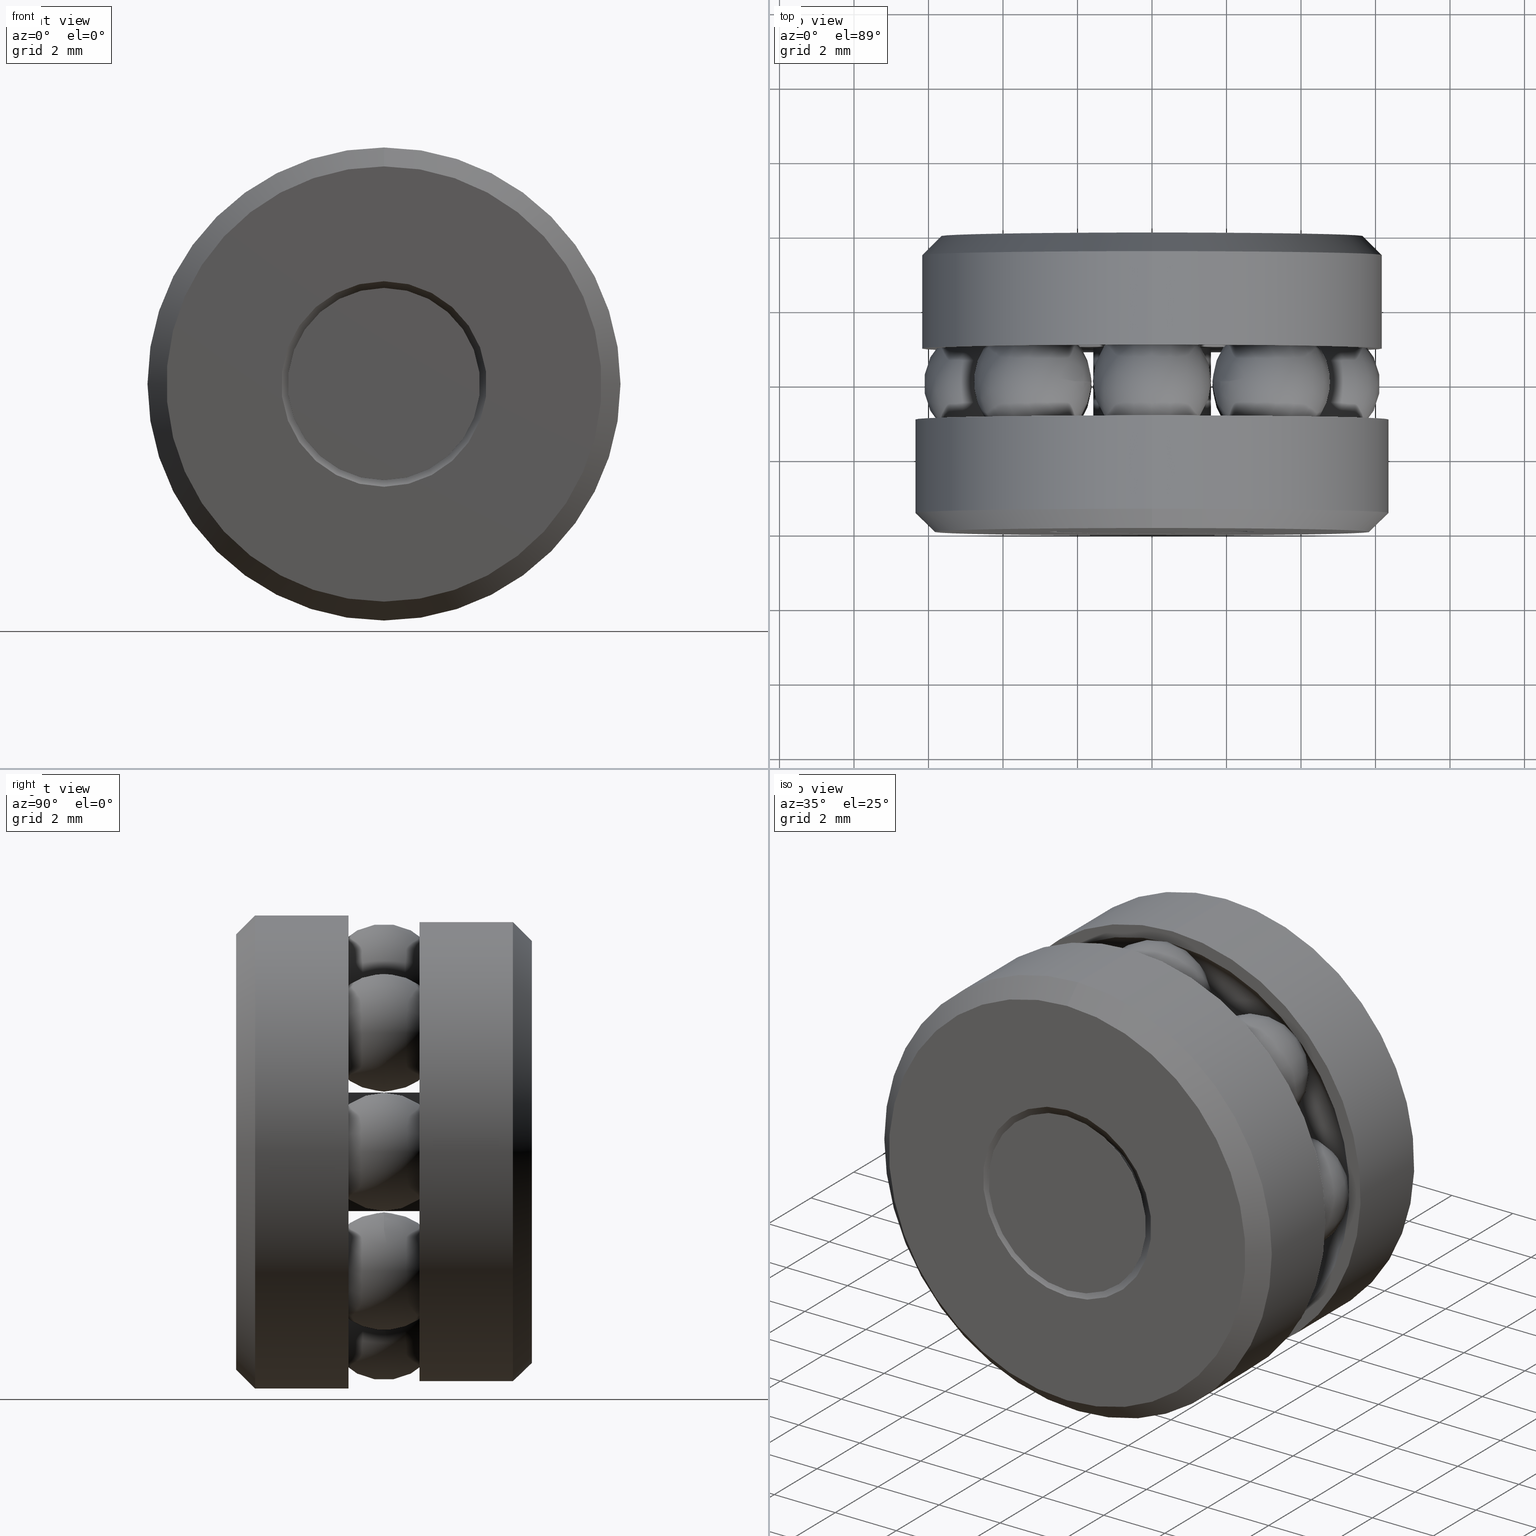
[diagram: canonical four-view strip — front | top / right | iso, engineering-drawing reading convention]
A machine part, canonical four-view strip (front | top / right | iso — engineering-drawing reading convention). The complete STEP part file that produces these views, byte-faithful:
ISO-10303-21;
HEADER;
FILE_DESCRIPTION (( 'STEP AP203' ),
    '1' );
FILE_NAME ('T-114RG_T-114RG-0008.step',
    '2016-02-04T15:34:07',
    ( '' ),
    ( '' ),
    'SwSTEP 2.0',
    'SolidWorks 2016',
    '' );
FILE_SCHEMA (( 'CONFIG_CONTROL_DESIGN' ));
ENDSEC;

DATA;
#1 = CALENDAR_DATE ( 2016, 4, 2 ) ;
#2 = DIRECTION ( 'NONE',  ( 0.0000000000000000000, 0.0000000000000000000, 1.000000000000000000 ) ) ;
#3 = CARTESIAN_POINT ( 'NONE',  ( 0.0000000000000000000, 0.3125000000000000000, 0.0000000000000000000 ) ) ;
#4 = EDGE_LOOP ( 'NONE', ( #144 ) ) ;
#5 = FACE_OUTER_BOUND ( 'NONE', #548, .T. ) ;
#6 = ORIENTED_EDGE ( 'NONE', *, *, #516, .F. ) ;
#7 = CARTESIAN_POINT ( 'NONE',  ( -0.2500000000000000000, 0.1187499999999999700, 0.0000000000000000000 ) ) ;
#8 = ORIENTED_EDGE ( 'NONE', *, *, #428, .T. ) ;
#9 = EDGE_LOOP ( 'NONE', ( #8 ) ) ;
#10 = DIRECTION ( 'NONE',  ( 0.0000000000000000000, 0.0000000000000000000, 1.000000000000000000 ) ) ;
#11 = ORIENTED_EDGE ( 'NONE', *, *, #343, .F. ) ;
#12 = PRODUCT_DEFINITION_FORMATION_WITH_SPECIFIED_SOURCE ( 'ANY', '', #325, .NOT_KNOWN. ) ;
#13 = DIRECTION ( 'NONE',  ( 0.0000000000000000000, 0.0000000000000000000, 1.000000000000000000 ) ) ;
#14 = ORIENTED_EDGE ( 'NONE', *, *, #354, .F. ) ;
#15 = CLOSED_SHELL ( 'NONE', ( #359 ) ) ;
#16 = CARTESIAN_POINT ( 'NONE',  ( -0.1015624999999995700, 0.0000000000000000000, 0.0000000000000000000 ) ) ;
#17 = EDGE_LOOP ( 'NONE', ( #252 ) ) ;
#18 = AXIS2_PLACEMENT_3D ( 'NONE', #7, #456, #140 ) ;
#19 = CARTESIAN_POINT ( 'NONE',  ( -1.869688256950497400E-015, 0.1562500000000000000, -0.1784999999999999600 ) ) ;
#20 = CALENDAR_DATE ( 2016, 4, 2 ) ;
#21 = AXIS2_PLACEMENT_3D ( 'NONE', #62, #125, #288 ) ;
#22 = DIRECTION ( 'NONE',  ( -0.0000000000000000000, 1.000000000000000000, -0.0000000000000000000 ) ) ;
#23 = ORIENTED_EDGE ( 'NONE', *, *, #362, .T. ) ;
#24 = ORIENTED_EDGE ( 'NONE', *, *, #307, .F. ) ;
#25 = ADVANCED_FACE ( 'NONE', ( ), #217, .T. ) ;
#26 = AXIS2_PLACEMENT_3D ( 'NONE', #554, #510, #269 ) ;
#27 = DIRECTION ( 'NONE',  ( 0.0000000000000000000, 0.0000000000000000000, 1.000000000000000000 ) ) ;
#28 = CARTESIAN_POINT ( 'NONE',  ( 0.0000000000000000000, 0.0000000000000000000, 0.0000000000000000000 ) ) ;
#29 = DIRECTION ( 'NONE',  ( 0.0000000000000000000, 0.0000000000000000000, 1.000000000000000000 ) ) ;
#30 = ORIENTED_EDGE ( 'NONE', *, *, #428, .F. ) ;
#31 = EDGE_LOOP ( 'NONE', ( #414 ) ) ;
#32 = CC_DESIGN_DATE_AND_TIME_ASSIGNMENT ( #137, #397, ( #174 ) ) ;
#33 = VERTEX_POINT ( 'NONE', #483 ) ;
#34 = MANIFOLD_SOLID_BREP ( 'BALLS[6]', #522 ) ;
#35 = SHAPE_DEFINITION_REPRESENTATION ( #340, #449 ) ;
#36 = DIRECTION ( 'NONE',  ( -0.0000000000000000000, 1.000000000000000000, 0.0000000000000000000 ) ) ;
#37 = CC_DESIGN_SECURITY_CLASSIFICATION ( #81, ( #12 ) ) ;
#38 = DATE_AND_TIME ( #176, #279 ) ;
#39 = AXIS2_PLACEMENT_3D ( 'NONE', #539, #331, #507 ) ;
#40 = EDGE_LOOP ( 'NONE', ( #151 ) ) ;
#41 = EDGE_LOOP ( 'NONE', ( #11 ) ) ;
#42 = CIRCLE ( 'NONE', #454, 0.1284999999999999500 ) ;
#43 = DIRECTION ( 'NONE',  ( -0.0000000000000000000, 1.000000000000000000, -0.0000000000000000000 ) ) ;
#44 = APPROVAL_DATE_TIME ( #150, #91 ) ;
#45 = EDGE_LOOP ( 'NONE', ( #30 ) ) ;
#46 = CARTESIAN_POINT ( 'NONE',  ( 0.0000000000000000000, 0.1937500000000000100, 0.0000000000000000000 ) ) ;
#47 = CC_DESIGN_PERSON_AND_ORGANIZATION_ASSIGNMENT ( #387, #399, ( #174 ) ) ;
#48 = ORIENTED_EDGE ( 'NONE', *, *, #86, .F. ) ;
#49 = ORIENTED_EDGE ( 'NONE', *, *, #445, .T. ) ;
#50 = ADVANCED_FACE ( 'NONE', ( #219, #190 ), #216, .F. ) ;
#51 = EDGE_LOOP ( 'NONE', ( #277 ) ) ;
#52 = SPHERICAL_SURFACE ( 'NONE', #378, 0.06250000000000001400 ) ;
#53 = PERSON_AND_ORGANIZATION ( #315, #348 ) ;
#54 = ADVANCED_FACE ( 'NONE', ( #166, #189 ), #117, .F. ) ;
#55 = APPLICATION_CONTEXT ( 'configuration controlled 3d designs of mechanical parts and assemblies' ) ;
#56 = ORIENTED_EDGE ( 'NONE', *, *, #338, .F. ) ;
#57 = MANIFOLD_SOLID_BREP ( 'BALLS[2]', #152 ) ;
#58 = ORIENTED_EDGE ( 'NONE', *, *, #321, .F. ) ;
#59 = AXIS2_PLACEMENT_3D ( 'NONE', #236, #533, #167 ) ;
#60 = FACE_OUTER_BOUND ( 'NONE', #63, .T. ) ;
#61 = DIRECTION ( 'NONE',  ( 0.0000000000000000000, 0.0000000000000000000, 1.000000000000000000 ) ) ;
#62 = CARTESIAN_POINT ( 'NONE',  ( 0.0000000000000000000, -5.082755344596973000E-018, 0.0000000000000000000 ) ) ;
#63 = EDGE_LOOP ( 'NONE', ( #48 ) ) ;
#64 = ORIENTED_EDGE ( 'NONE', *, *, #86, .T. ) ;
#65 = ORIENTED_EDGE ( 'NONE', *, *, #516, .T. ) ;
#66 = DIRECTION ( 'NONE',  ( -0.0000000000000000000, 1.000000000000000000, -0.0000000000000000000 ) ) ;
#67 = DIRECTION ( 'NONE',  ( 0.7071067811865389100, 0.0000000000000000000, -0.7071067811865561200 ) ) ;
#68 = DIRECTION ( 'NONE',  ( 0.0000000000000000000, 0.0000000000000000000, 1.000000000000000000 ) ) ;
#69 = ORIENTED_EDGE ( 'NONE', *, *, #154, .F. ) ;
#70 = ORIENTED_EDGE ( 'NONE', *, *, #484, .T. ) ;
#71 = DIRECTION ( 'NONE',  ( -0.0000000000000000000, 1.000000000000000000, -0.0000000000000000000 ) ) ;
#72 = ADVANCED_FACE ( 'NONE', ( #181, #118 ), #111, .T. ) ;
#73 = VERTEX_POINT ( 'NONE', #472 ) ;
#74 = CARTESIAN_POINT ( 'NONE',  ( 0.0000000000000000000, 0.1187499999999999900, 0.0000000000000000000 ) ) ;
#75 = ORIENTED_EDGE ( 'NONE', *, *, #406, .T. ) ;
#76 = AXIS2_PLACEMENT_3D ( 'NONE', #3, #93, #165 ) ;
#77 = APPROVAL_PERSON_ORGANIZATION ( #132, #91, #401 ) ;
#78 = CC_DESIGN_APPROVAL ( #91, ( #174 ) ) ;
#79 = LOCAL_TIME ( 10, 34, 7.000000000000000000, #194 ) ;
#80 = CARTESIAN_POINT ( 'NONE',  ( 0.0000000000000000000, 0.02000000000000017400, 0.0000000000000000000 ) ) ;
#81 = SECURITY_CLASSIFICATION ( '', '', #386 ) ;
#82 = ORIENTED_EDGE ( 'NONE', *, *, #321, .T. ) ;
#83 = DIRECTION ( 'NONE',  ( -0.0000000000000000000, 1.000000000000000000, -0.0000000000000000000 ) ) ;
#84 = FACE_OUTER_BOUND ( 'NONE', #51, .T. ) ;
#85 = CIRCLE ( 'NONE', #59, 0.2300000000000000100 ) ;
#86 = EDGE_CURVE ( 'NONE', #156, #156, #155, .T. ) ;
#87 = CARTESIAN_POINT ( 'NONE',  ( 0.0000000000000000000, 0.3125000000000000000, 0.0000000000000000000 ) ) ;
#88 = FACE_OUTER_BOUND ( 'NONE', #31, .T. ) ;
#89 = DIRECTION ( 'NONE',  ( 0.0000000000000000000, -1.000000000000000000, 0.0000000000000000000 ) ) ;
#90 = ORIENTED_EDGE ( 'NONE', *, *, #338, .T. ) ;
#91 = APPROVAL ( #404, 'UNSPECIFIED' ) ;
#92 = FACE_OUTER_BOUND ( 'NONE', #302, .T. ) ;
#93 = DIRECTION ( 'NONE',  ( -0.0000000000000000000, 1.000000000000000000, -0.0000000000000000000 ) ) ;
#94 = SPHERICAL_SURFACE ( 'NONE', #230, 0.06250000000000001400 ) ;
#95 = VERTEX_POINT ( 'NONE', #469 ) ;
#96 = AXIS2_PLACEMENT_3D ( 'NONE', #208, #357, #178 ) ;
#97 = MANIFOLD_SOLID_BREP ( 'Revolve2[1]', #339 ) ;
#98 = EDGE_LOOP ( 'NONE', ( #164 ) ) ;
#99 = ORIENTED_EDGE ( 'NONE', *, *, #383, .F. ) ;
#100 = FACE_OUTER_BOUND ( 'NONE', #291, .T. ) ;
#101 = SPHERICAL_SURFACE ( 'NONE', #496, 0.06250000000000001400 ) ;
#102 = AXIS2_PLACEMENT_3D ( 'NONE', #136, #259, #145 ) ;
#103 = CARTESIAN_POINT ( 'NONE',  ( 0.0000000000000000000, 0.3125000000000000000, 0.0000000000000000000 ) ) ;
#104 = AXIS2_PLACEMENT_3D ( 'NONE', #16, #254, #501 ) ;
#105 = LOCAL_TIME ( 10, 34, 7.000000000000000000, #188 ) ;
#106 = CIRCLE ( 'NONE', #223, 0.2284999999999999500 ) ;
#107 = AXIS2_PLACEMENT_3D ( 'NONE', #207, #448, #420 ) ;
#108 = CYLINDRICAL_SURFACE ( 'NONE', #96, 0.06749999999999999100 ) ;
#109 = CIRCLE ( 'NONE', #515, 0.1284999999999999500 ) ;
#110 = AXIS2_PLACEMENT_3D ( 'NONE', #323, #431, #329 ) ;
#111 = CYLINDRICAL_SURFACE ( 'NONE', #233, 0.2429999999999999700 ) ;
#112 = DIRECTION ( 'NONE',  ( -0.0000000000000000000, 1.000000000000000000, -0.0000000000000000000 ) ) ;
#113 = CARTESIAN_POINT ( 'NONE',  ( 0.0000000000000000000, 0.1937500000000000100, 0.0000000000000000000 ) ) ;
#114 = DIRECTION ( 'NONE',  ( 0.0000000000000000000, 0.0000000000000000000, -1.000000000000000000 ) ) ;
#115 = DIRECTION ( 'NONE',  ( 0.0000000000000000000, 0.0000000000000000000, 1.000000000000000000 ) ) ;
#116 = DIRECTION ( 'NONE',  ( -0.0000000000000000000, 1.000000000000000000, -0.0000000000000000000 ) ) ;
#117 = CONICAL_SURFACE ( 'NONE', #295, 0.06750000000000004600, 0.7853981633974433900 ) ;
#118 = FACE_OUTER_BOUND ( 'NONE', #335, .T. ) ;
#119 = DIRECTION ( 'NONE',  ( -0.0000000000000000000, 1.000000000000000000, 0.0000000000000000000 ) ) ;
#120 = ADVANCED_FACE ( 'NONE', ( ), #94, .T. ) ;
#121 = DIRECTION ( 'NONE',  ( -0.0000000000000000000, 1.000000000000000000, -0.0000000000000000000 ) ) ;
#122 = CARTESIAN_POINT ( 'NONE',  ( 0.0000000000000000000, 0.1937500000000000100, 0.0000000000000000000 ) ) ;
#123 = EDGE_CURVE ( 'NONE', #370, #370, #148, .T. ) ;
#124 = CARTESIAN_POINT ( 'NONE',  ( 0.0000000000000000000, 0.03906250000000002800, 0.0000000000000000000 ) ) ;
#125 = DIRECTION ( 'NONE',  ( -0.0000000000000000000, 1.000000000000000000, -0.0000000000000000000 ) ) ;
#126 = AXIS2_PLACEMENT_3D ( 'NONE', #28, #22, #29 ) ;
#127 = CARTESIAN_POINT ( 'NONE',  ( 0.0000000000000000000, 0.3125000000000000000, 0.0000000000000000000 ) ) ;
#128 = DIMENSIONAL_EXPONENTS ( 1.000000000000000000, 0.0000000000000000000, 0.0000000000000000000, 0.0000000000000000000, 0.0000000000000000000, 0.0000000000000000000, 0.0000000000000000000 ) ;
#129 = ORIENTED_EDGE ( 'NONE', *, *, #175, .T. ) ;
#130 = DIRECTION ( 'NONE',  ( 0.0000000000000000000, -1.000000000000000000, 0.0000000000000000000 ) ) ;
#131 = DIRECTION ( 'NONE',  ( -0.0000000000000000000, 1.000000000000000000, -0.0000000000000000000 ) ) ;
#132 = PERSON_AND_ORGANIZATION ( #315, #348 ) ;
#133 = ORIENTED_EDGE ( 'NONE', *, *, #123, .F. ) ;
#134 = AXIS2_PLACEMENT_3D ( 'NONE', #477, #290, #389 ) ;
#135 = CLOSED_SHELL ( 'NONE', ( #205, #394, #289, #168, #260, #465, #50, #410 ) ) ;
#136 = CARTESIAN_POINT ( 'NONE',  ( 0.0000000000000000000, 0.3125000000000000000, 0.0000000000000000000 ) ) ;
#137 = DATE_AND_TIME ( #403, #146 ) ;
#138 = ADVANCED_FACE ( 'NONE', ( #149, #88 ), #547, .F. ) ;
#139 = EDGE_LOOP ( 'NONE', ( #308 ) ) ;
#140 = DIRECTION ( 'NONE',  ( 0.0000000000000000000, 0.0000000000000000000, 1.000000000000000000 ) ) ;
#141 = EDGE_CURVE ( 'NONE', #256, #256, #558, .T. ) ;
#142 = CARTESIAN_POINT ( 'NONE',  ( 0.0000000000000000000, 0.0000000000000000000, 0.0000000000000000000 ) ) ;
#143 = SPHERICAL_SURFACE ( 'NONE', #26, 0.06250000000000001400 ) ;
#144 = ORIENTED_EDGE ( 'NONE', *, *, #154, .T. ) ;
#145 = DIRECTION ( 'NONE',  ( 0.0000000000000000000, 0.0000000000000000000, 1.000000000000000000 ) ) ;
#146 = LOCAL_TIME ( 10, 34, 7.000000000000000000, #373 ) ;
#147 = VERTEX_POINT ( 'NONE', #514 ) ;
#148 = CIRCLE ( 'NONE', #261, 0.1015624999999995700 ) ;
#149 = FACE_OUTER_BOUND ( 'NONE', #327, .T. ) ;
#150 = DATE_AND_TIME ( #1, #105 ) ;
#151 = ORIENTED_EDGE ( 'NONE', *, *, #123, .T. ) ;
#152 = CLOSED_SHELL ( 'NONE', ( #25 ) ) ;
#153 = MANIFOLD_SOLID_BREP ( 'Revolve3', #379 ) ;
#154 = EDGE_CURVE ( 'NONE', #147, #147, #468, .T. ) ;
#155 = CIRCLE ( 'NONE', #249, 0.06250000000000004200 ) ;
#156 = VERTEX_POINT ( 'NONE', #537 ) ;
#157 = LOCAL_TIME ( 10, 34, 7.000000000000000000, #263 ) ;
#158 = DIRECTION ( 'NONE',  ( 0.0000000000000000000, 0.0000000000000000000, -1.000000000000000000 ) ) ;
#159 = AXIS2_PLACEMENT_3D ( 'NONE', #19, #202, #201 ) ;
#160 = VERTEX_POINT ( 'NONE', #474 ) ;
#161 = DIRECTION ( 'NONE',  ( 0.0000000000000000000, 0.0000000000000000000, 1.000000000000000000 ) ) ;
#162 = ORIENTED_EDGE ( 'NONE', *, *, #406, .F. ) ;
#163 = FACE_OUTER_BOUND ( 'NONE', #480, .T. ) ;
#164 = ORIENTED_EDGE ( 'NONE', *, *, #457, .T. ) ;
#165 = DIRECTION ( 'NONE',  ( 0.0000000000000000000, 0.0000000000000000000, 1.000000000000000000 ) ) ;
#166 = FACE_OUTER_BOUND ( 'NONE', #382, .T. ) ;
#167 = DIRECTION ( 'NONE',  ( 0.0000000000000000000, 0.0000000000000000000, 1.000000000000000000 ) ) ;
#168 = ADVANCED_FACE ( 'NONE', ( #565, #453 ), #322, .F. ) ;
#169 = DIRECTION ( 'NONE',  ( -0.0000000000000000000, 1.000000000000000000, -0.0000000000000000000 ) ) ;
#170 = CARTESIAN_POINT ( 'NONE',  ( 0.0000000000000000000, 0.1187499999999999700, 0.0000000000000000000 ) ) ;
#171 = CARTESIAN_POINT ( 'NONE',  ( -0.1262185604418002100, 0.1562500000000000000, -0.1262185604417971600 ) ) ;
#172 = AXIS2_PLACEMENT_3D ( 'NONE', #487, #130, #324 ) ;
#173 = DIRECTION ( 'NONE',  ( 0.0000000000000000000, -1.000000000000000000, 0.0000000000000000000 ) ) ;
#174 = PRODUCT_DEFINITION ( 'UNKNOWN', '', #12, #566 ) ;
#175 = EDGE_CURVE ( 'NONE', #418, #418, #337, .T. ) ;
#176 = CALENDAR_DATE ( 2016, 4, 2 ) ;
#177 = CC_DESIGN_PERSON_AND_ORGANIZATION_ASSIGNMENT ( #185, #391, ( #12 ) ) ;
#178 = DIRECTION ( 'NONE',  ( 0.0000000000000000000, 0.0000000000000000000, 1.000000000000000000 ) ) ;
#179 = AXIS2_PLACEMENT_3D ( 'NONE', #103, #89, #114 ) ;
#180 = FACE_BOUND ( 'NONE', #45, .T. ) ;
#181 = FACE_OUTER_BOUND ( 'NONE', #320, .T. ) ;
#182 = CC_DESIGN_PERSON_AND_ORGANIZATION_ASSIGNMENT ( #247, #426, ( #325 ) ) ;
#183 = FACE_OUTER_BOUND ( 'NONE', #41, .T. ) ;
#184 = AXIS2_PLACEMENT_3D ( 'NONE', #87, #71, #68 ) ;
#185 = PERSON_AND_ORGANIZATION ( #315, #348 ) ;
#186 = CYLINDRICAL_SURFACE ( 'NONE', #463, 0.06250000000000001400 ) ;
#187 = CARTESIAN_POINT ( 'NONE',  ( 0.0000000000000000000, -5.082755344596973000E-018, 0.0000000000000000000 ) ) ;
#188 = COORDINATED_UNIVERSAL_TIME_OFFSET ( 5, 0, .BEHIND. ) ;
#189 = FACE_BOUND ( 'NONE', #17, .T. ) ;
#190 = FACE_OUTER_BOUND ( 'NONE', #505, .T. ) ;
#191 = AXIS2_PLACEMENT_3D ( 'NONE', #433, #300, #550 ) ;
#192 = ADVANCED_FACE ( 'NONE', ( #429, #529 ), #232, .T. ) ;
#193 = AXIS2_PLACEMENT_3D ( 'NONE', #447, #466, #430 ) ;
#194 = COORDINATED_UNIVERSAL_TIME_OFFSET ( 5, 0, .BEHIND. ) ;
#195 = MANIFOLD_SOLID_BREP ( 'BALLS[7]', #460 ) ;
#196 = AXIS2_PLACEMENT_3D ( 'NONE', #187, #173, #158 ) ;
#197 = DIRECTION ( 'NONE',  ( -0.0000000000000000000, 1.000000000000000000, -0.0000000000000000000 ) ) ;
#198 = CC_DESIGN_DATE_AND_TIME_ASSIGNMENT ( #38, #381, ( #81 ) ) ;
#199 = FACE_OUTER_BOUND ( 'NONE', #229, .T. ) ;
#200 = AXIS2_PLACEMENT_3D ( 'NONE', #226, #234, #231 ) ;
#201 = DIRECTION ( 'NONE',  ( 1.047444401652940000E-014, 0.0000000000000000000, 1.000000000000000000 ) ) ;
#202 = DIRECTION ( 'NONE',  ( 1.000000000000000000, 0.0000000000000000000, -1.047444401652940200E-014 ) ) ;
#203 = PLANE ( 'NONE',  #18 ) ;
#204 = VERTEX_POINT ( 'NONE', #494 ) ;
#205 = ADVANCED_FACE ( 'NONE', ( #444, #265 ), #213, .T. ) ;
#206 = SPHERICAL_SURFACE ( 'NONE', #191, 0.06250000000000001400 ) ;
#207 = CARTESIAN_POINT ( 'NONE',  ( 0.0000000000000000000, 0.04113356781186544600, 0.0000000000000000000 ) ) ;
#208 = CARTESIAN_POINT ( 'NONE',  ( 0.0000000000000000000, 0.0000000000000000000, 0.0000000000000000000 ) ) ;
#209 = DIRECTION ( 'NONE',  ( 0.0000000000000000000, 0.0000000000000000000, 1.000000000000000000 ) ) ;
#210 = AXIS2_PLACEMENT_3D ( 'NONE', #170, #169, #161 ) ;
#211 = DIRECTION ( 'NONE',  ( -0.0000000000000000000, 1.000000000000000000, -0.0000000000000000000 ) ) ;
#212 = ORIENTED_EDGE ( 'NONE', *, *, #141, .F. ) ;
#213 = CYLINDRICAL_SURFACE ( 'NONE', #126, 0.2500000000000000000 ) ;
#214 = FACE_BOUND ( 'NONE', #393, .T. ) ;
#215 = CARTESIAN_POINT ( 'NONE',  ( 0.0000000000000000000, 0.0000000000000000000, 0.0000000000000000000 ) ) ;
#216 = TOROIDAL_SURFACE ( 'NONE', #278, 0.1784999999999999600, 0.06250000000000001400 ) ;
#217 = SPHERICAL_SURFACE ( 'NONE', #283, 0.06250000000000001400 ) ;
#218 = CARTESIAN_POINT ( 'NONE',  ( 0.0000000000000000000, 0.1937500000000000100, 0.0000000000000000000 ) ) ;
#219 = FACE_OUTER_BOUND ( 'NONE', #9, .T. ) ;
#220 = EDGE_LOOP ( 'NONE', ( #361 ) ) ;
#221 = DIRECTION ( 'NONE',  ( -0.0000000000000000000, 1.000000000000000000, -0.0000000000000000000 ) ) ;
#222 = VERTEX_POINT ( 'NONE', #509 ) ;
#223 = AXIS2_PLACEMENT_3D ( 'NONE', #122, #121, #345 ) ;
#224 = APPROVAL ( #395, 'UNSPECIFIED' ) ;
#225 = AXIS2_PLACEMENT_3D ( 'NONE', #124, #116, #115 ) ;
#226 = CARTESIAN_POINT ( 'NONE',  ( 0.0000000000000000000, 0.0000000000000000000, 0.0000000000000000000 ) ) ;
#227 = ADVANCED_FACE ( 'NONE', ( ), #310, .T. ) ;
#228 = CC_DESIGN_PERSON_AND_ORGANIZATION_ASSIGNMENT ( #513, #385, ( #81 ) ) ;
#229 = EDGE_LOOP ( 'NONE', ( #133 ) ) ;
#230 = AXIS2_PLACEMENT_3D ( 'NONE', #257, #258, #237 ) ;
#231 = DIRECTION ( 'NONE',  ( 0.0000000000000000000, 0.0000000000000000000, 1.000000000000000000 ) ) ;
#232 = CONICAL_SURFACE ( 'NONE', #179, 0.2230000000000001400, 0.7853981633974389500 ) ;
#233 = AXIS2_PLACEMENT_3D ( 'NONE', #286, #281, #293 ) ;
#234 = DIRECTION ( 'NONE',  ( -0.0000000000000000000, 1.000000000000000000, -0.0000000000000000000 ) ) ;
#235 = EDGE_LOOP ( 'NONE', ( #64 ) ) ;
#236 = CARTESIAN_POINT ( 'NONE',  ( 0.0000000000000000000, -2.253931676032620700E-017, 0.0000000000000000000 ) ) ;
#237 = DIRECTION ( 'NONE',  ( -0.7071067811865413600, 0.0000000000000000000, 0.7071067811865536800 ) ) ;
#238 = UNCERTAINTY_MEASURE_WITH_UNIT (LENGTH_MEASURE( 1.000000000000000100E-005 ), #443, 'distance_accuracy_value', 'NONE');
#239 = FACE_OUTER_BOUND ( 'NONE', #139, .T. ) ;
#240 = DIRECTION ( 'NONE',  ( 0.0000000000000000000, 0.0000000000000000000, 1.000000000000000000 ) ) ;
#241 = DIRECTION ( 'NONE',  ( -0.0000000000000000000, 1.000000000000000000, -0.0000000000000000000 ) ) ;
#242 = FACE_OUTER_BOUND ( 'NONE', #220, .T. ) ;
#243 = CARTESIAN_POINT ( 'NONE',  ( 0.0000000000000000000, 0.2734375000000000000, 0.0000000000000000000 ) ) ;
#244 = EDGE_LOOP ( 'NONE', ( #70 ) ) ;
#245 = ADVANCED_FACE ( 'NONE', ( #199 ), #427, .T. ) ;
#246 = CARTESIAN_POINT ( 'NONE',  ( 0.0000000000000000000, 0.2713664321881346100, 0.0000000000000000000 ) ) ;
#247 = PERSON_AND_ORGANIZATION ( #315, #348 ) ;
#248 = DIRECTION ( 'NONE',  ( 0.0000000000000000000, 0.0000000000000000000, 1.000000000000000000 ) ) ;
#249 = AXIS2_PLACEMENT_3D ( 'NONE', #243, #241, #240 ) ;
#250 = MANIFOLD_SOLID_BREP ( 'BALLS[1]', #521 ) ;
#251 = PLANE ( 'NONE',  #172 ) ;
#252 = ORIENTED_EDGE ( 'NONE', *, *, #398, .F. ) ;
#253 = CC_DESIGN_PERSON_AND_ORGANIZATION_ASSIGNMENT ( #53, #388, ( #12 ) ) ;
#254 = DIRECTION ( 'NONE',  ( 0.0000000000000000000, -1.000000000000000000, 0.0000000000000000000 ) ) ;
#255 = VERTEX_POINT ( 'NONE', #476 ) ;
#256 = VERTEX_POINT ( 'NONE', #535 ) ;
#257 = CARTESIAN_POINT ( 'NONE',  ( 0.1262185604417976100, 0.1562500000000000000, -0.1262185604417998000 ) ) ;
#258 = DIRECTION ( 'NONE',  ( 0.7071067811865535700, -0.0000000000000000000, 0.7071067811865413600 ) ) ;
#259 = DIRECTION ( 'NONE',  ( -0.0000000000000000000, 1.000000000000000000, -0.0000000000000000000 ) ) ;
#260 = ADVANCED_FACE ( 'NONE', ( #239, #163 ), #108, .F. ) ;
#261 = AXIS2_PLACEMENT_3D ( 'NONE', #215, #211, #209 ) ;
#262 = ADVANCED_FACE ( 'NONE', ( #352, #100 ), #543, .T. ) ;
#263 = COORDINATED_UNIVERSAL_TIME_OFFSET ( 5, 0, .BEHIND. ) ;
#264 = VERTEX_POINT ( 'NONE', #481 ) ;
#265 = FACE_OUTER_BOUND ( 'NONE', #432, .T. ) ;
#266 = MANIFOLD_SOLID_BREP ( 'Revolve2[3]', #135 ) ;
#267 = CIRCLE ( 'NONE', #360, 0.2429999999999999700 ) ;
#268 = LENGTH_MEASURE_WITH_UNIT ( LENGTH_MEASURE( 0.02539999999999999900 ), #450 );
#269 = DIRECTION ( 'NONE',  ( 0.7071067811865462400, 0.0000000000000000000, -0.7071067811865486800 ) ) ;
#270 = FACE_OUTER_BOUND ( 'NONE', #408, .T. ) ;
#271 = ORIENTED_EDGE ( 'NONE', *, *, #362, .F. ) ;
#272 = FACE_BOUND ( 'NONE', #346, .T. ) ;
#273 = EDGE_LOOP ( 'NONE', ( #14 ) ) ;
#274 = MANIFOLD_SOLID_BREP ( 'BALLS[4]', #15 ) ;
#275 = ADVANCED_FACE ( 'NONE', ( #419, #471 ), #438, .T. ) ;
#276 = ORIENTED_EDGE ( 'NONE', *, *, #459, .F. ) ;
#277 = ORIENTED_EDGE ( 'NONE', *, *, #141, .T. ) ;
#278 = AXIS2_PLACEMENT_3D ( 'NONE', #285, #368, #332 ) ;
#279 = LOCAL_TIME ( 10, 34, 7.000000000000000000, #396 ) ;
#280 = VERTEX_POINT ( 'NONE', #499 ) ;
#281 = DIRECTION ( 'NONE',  ( -0.0000000000000000000, 1.000000000000000000, -0.0000000000000000000 ) ) ;
#282 = FACE_BOUND ( 'NONE', #440, .T. ) ;
#283 = AXIS2_PLACEMENT_3D ( 'NONE', #365, #316, #333 ) ;
#284 = CARTESIAN_POINT ( 'NONE',  ( 0.0000000000000000000, 0.3125000000000000000, 0.0000000000000000000 ) ) ;
#285 = CARTESIAN_POINT ( 'NONE',  ( 0.0000000000000000000, 0.1562500000000000000, 0.0000000000000000000 ) ) ;
#286 = CARTESIAN_POINT ( 'NONE',  ( 0.0000000000000000000, 0.0000000000000000000, 0.0000000000000000000 ) ) ;
#287 = DIRECTION ( 'NONE',  ( -0.0000000000000000000, 1.000000000000000000, -0.0000000000000000000 ) ) ;
#288 = DIRECTION ( 'NONE',  ( 0.0000000000000000000, 0.0000000000000000000, 1.000000000000000000 ) ) ;
#289 = ADVANCED_FACE ( 'NONE', ( #536, #5 ), #475, .T. ) ;
#290 = DIRECTION ( 'NONE',  ( -0.0000000000000000000, 1.000000000000000000, 0.0000000000000000000 ) ) ;
#291 = EDGE_LOOP ( 'NONE', ( #162 ) ) ;
#292 = CIRCLE ( 'NONE', #534, 0.2429999999999999700 ) ;
#293 = DIRECTION ( 'NONE',  ( 0.0000000000000000000, 0.0000000000000000000, 1.000000000000000000 ) ) ;
#294 = APPROVAL_DATE_TIME ( #417, #224 ) ;
#295 = AXIS2_PLACEMENT_3D ( 'NONE', #313, #309, #464 ) ;
#296 = CIRCLE ( 'NONE', #306, 0.06749999999999999100 ) ;
#297 = CIRCLE ( 'NONE', #560, 0.2284999999999999500 ) ;
#298 = ORIENTED_EDGE ( 'NONE', *, *, #175, .F. ) ;
#299 = DIRECTION ( 'NONE',  ( 0.7071067811865561200, 0.0000000000000000000, 0.7071067811865389100 ) ) ;
#300 = DIRECTION ( 'NONE',  ( 0.0000000000000000000, 0.0000000000000000000, -1.000000000000000000 ) ) ;
#301 = CIRCLE ( 'NONE', #107, 0.06749999999999999100 ) ;
#302 = EDGE_LOOP ( 'NONE', ( #531 ) ) ;
#303 = ADVANCED_FACE ( 'NONE', ( ), #143, .T. ) ;
#304 = ORIENTED_EDGE ( 'NONE', *, *, #307, .T. ) ;
#305 = APPROVAL_PERSON_ORGANIZATION ( #425, #224, #392 ) ;
#306 = AXIS2_PLACEMENT_3D ( 'NONE', #380, #390, #13 ) ;
#307 = EDGE_CURVE ( 'NONE', #222, #222, #85, .T. ) ;
#308 = ORIENTED_EDGE ( 'NONE', *, *, #354, .T. ) ;
#309 = DIRECTION ( 'NONE',  ( -0.0000000000000000000, 1.000000000000000000, -0.0000000000000000000 ) ) ;
#310 = SPHERICAL_SURFACE ( 'NONE', #159, 0.06250000000000001400 ) ;
#311 = CONICAL_SURFACE ( 'NONE', #349, 0.2500000000000000000, 0.7853981633974431700 ) ;
#312 = CC_DESIGN_APPROVAL ( #367, ( #81 ) ) ;
#313 = CARTESIAN_POINT ( 'NONE',  ( 0.0000000000000000000, 0.2713664321881346100, 0.0000000000000000000 ) ) ;
#314 = ORIENTED_EDGE ( 'NONE', *, *, #398, .T. ) ;
#315 = PERSON ( 'UNSPECIFIED', 'UNSPECIFIED', 'UNSPECIFIED', ('UNSPECIFIED'), ('UNSPECIFIED'), ('UNSPECIFIED') ) ;
#316 = DIRECTION ( 'NONE',  ( -1.000000000000000000, 0.0000000000000000000, 3.491481338843132600E-015 ) ) ;
#317 = VERTEX_POINT ( 'NONE', #495 ) ;
#318 = AXIS2_PLACEMENT_3D ( 'NONE', #532, #492, #490 ) ;
#319 = FACE_OUTER_BOUND ( 'NONE', #4, .T. ) ;
#320 = EDGE_LOOP ( 'NONE', ( #23 ) ) ;
#321 = EDGE_CURVE ( 'NONE', #564, #564, #452, .T. ) ;
#322 = CONICAL_SURFACE ( 'NONE', #196, 0.1086335678118649800, 0.7853981633974426200 ) ;
#323 = CARTESIAN_POINT ( 'NONE',  ( 0.0000000000000000000, 0.03906250000000002800, 0.0000000000000000000 ) ) ;
#324 = DIRECTION ( 'NONE',  ( 0.0000000000000000000, -0.0000000000000000000, -1.000000000000000000 ) ) ;
#325 = PRODUCT ( 'T-114RG_T-114RG-0008', 'T-114RG_T-114RG-0008', '', ( #411 ) ) ;
#326 = ORIENTED_EDGE ( 'NONE', *, *, #459, .T. ) ;
#327 = EDGE_LOOP ( 'NONE', ( #314 ) ) ;
#328 = CARTESIAN_POINT ( 'NONE',  ( 0.0000000000000000000, 0.2924999999999998200, 0.0000000000000000000 ) ) ;
#329 = DIRECTION ( 'NONE',  ( 0.0000000000000000000, 0.0000000000000000000, -1.000000000000000000 ) ) ;
#330 = ADVANCED_FACE ( 'NONE', ( #423, #92 ), #251, .T. ) ;
#331 = DIRECTION ( 'NONE',  ( 0.0000000000000000000, -1.000000000000000000, 0.0000000000000000000 ) ) ;
#332 = DIRECTION ( 'NONE',  ( 0.0000000000000000000, 0.0000000000000000000, 1.000000000000000000 ) ) ;
#333 = DIRECTION ( 'NONE',  ( -3.491481338843132600E-015, 0.0000000000000000000, -1.000000000000000000 ) ) ;
#334 = SPHERICAL_SURFACE ( 'NONE', #376, 0.06250000000000001400 ) ;
#335 = EDGE_LOOP ( 'NONE', ( #6 ) ) ;
#336 = ADVANCED_FACE ( 'NONE', ( ), #206, .T. ) ;
#337 = CIRCLE ( 'NONE', #184, 0.2230000000000001400 ) ;
#338 = EDGE_CURVE ( 'NONE', #280, #280, #301, .T. ) ;
#339 = CLOSED_SHELL ( 'NONE', ( #245, #369, #262, #374, #275 ) ) ;
#340 = PRODUCT_DEFINITION_SHAPE ( 'NONE', 'NONE',  #174 ) ;
#341 = CC_DESIGN_APPROVAL ( #224, ( #12 ) ) ;
#342 = PLANE ( 'NONE',  #318 ) ;
#343 = EDGE_CURVE ( 'NONE', #451, #451, #106, .T. ) ;
#344 = PLANE ( 'NONE',  #551 ) ;
#345 = DIRECTION ( 'NONE',  ( 0.0000000000000000000, 0.0000000000000000000, 1.000000000000000000 ) ) ;
#346 = EDGE_LOOP ( 'NONE', ( #563 ) ) ;
#347 = CARTESIAN_POINT ( 'NONE',  ( 0.0000000000000000000, 0.02000000000000017400, 0.0000000000000000000 ) ) ;
#348 = ORGANIZATION ( 'UNSPECIFIED', 'UNSPECIFIED', '' ) ;
#349 = AXIS2_PLACEMENT_3D ( 'NONE', #347, #221, #562 ) ;
#350 = CARTESIAN_POINT ( 'NONE',  ( 0.0000000000000000000, 0.1562500000000000000, 0.0000000000000000000 ) ) ;
#351 = CLOSED_SHELL ( 'NONE', ( #54, #138, #330, #508, #353, #72, #192, #442 ) ) ;
#352 = FACE_BOUND ( 'NONE', #235, .T. ) ;
#353 = ADVANCED_FACE ( 'NONE', ( #272, #402 ), #342, .T. ) ;
#354 = EDGE_CURVE ( 'NONE', #317, #317, #296, .T. ) ;
#355 = CLOSED_SHELL ( 'NONE', ( #120 ) ) ;
#356 = EDGE_LOOP ( 'NONE', ( #271 ) ) ;
#357 = DIRECTION ( 'NONE',  ( -0.0000000000000000000, 1.000000000000000000, -0.0000000000000000000 ) ) ;
#358 = EDGE_LOOP ( 'NONE', ( #298 ) ) ;
#359 = ADVANCED_FACE ( 'NONE', ( ), #334, .T. ) ;
#360 = AXIS2_PLACEMENT_3D ( 'NONE', #218, #461, #467 ) ;
#361 = ORIENTED_EDGE ( 'NONE', *, *, #383, .T. ) ;
#362 = EDGE_CURVE ( 'NONE', #204, #204, #267, .T. ) ;
#363 = CIRCLE ( 'NONE', #497, 0.06750000000000001800 ) ;
#364 = DIRECTION ( 'NONE',  ( -0.0000000000000000000, 1.000000000000000000, -0.0000000000000000000 ) ) ;
#365 = CARTESIAN_POINT ( 'NONE',  ( 6.232294189834991600E-016, 0.1562500000000000000, 0.1784999999999999600 ) ) ;
#366 = APPROVAL_DATE_TIME ( #485, #367 ) ;
#367 = APPROVAL ( #375, 'UNSPECIFIED' ) ;
#368 = DIRECTION ( 'NONE',  ( -0.0000000000000000000, 1.000000000000000000, -0.0000000000000000000 ) ) ;
#369 = ADVANCED_FACE ( 'NONE', ( #502 ), #424, .T. ) ;
#370 = VERTEX_POINT ( 'NONE', #556 ) ;
#371 = APPROVAL_ROLE ( '' ) ;
#372 = EDGE_LOOP ( 'NONE', ( #65 ) ) ;
#373 = COORDINATED_UNIVERSAL_TIME_OFFSET ( 5, 0, .BEHIND. ) ;
#374 = ADVANCED_FACE ( 'NONE', ( #319, #60 ), #186, .T. ) ;
#375 = APPROVAL_STATUS ( 'not_yet_approved' ) ;
#376 = AXIS2_PLACEMENT_3D ( 'NONE', #517, #503, #546 ) ;
#377 = DIRECTION ( 'NONE',  ( 0.0000000000000000000, 0.0000000000000000000, 1.000000000000000000 ) ) ;
#378 = AXIS2_PLACEMENT_3D ( 'NONE', #557, #555, #545 ) ;
#379 = CLOSED_SHELL ( 'NONE', ( #336 ) ) ;
#380 = CARTESIAN_POINT ( 'NONE',  ( 0.0000000000000000000, 0.1187500000000000400, 0.0000000000000000000 ) ) ;
#381 = DATE_TIME_ROLE ( 'classification_date' ) ;
#382 = EDGE_LOOP ( 'NONE', ( #49 ) ) ;
#383 = EDGE_CURVE ( 'NONE', #437, #437, #42, .T. ) ;
#384 = APPROVAL_PERSON_ORGANIZATION ( #500, #367, #371 ) ;
#385 = PERSON_AND_ORGANIZATION_ROLE ( 'classification_officer' ) ;
#386 = SECURITY_CLASSIFICATION_LEVEL ( 'unclassified' ) ;
#387 = PERSON_AND_ORGANIZATION ( #315, #348 ) ;
#388 = PERSON_AND_ORGANIZATION_ROLE ( 'design_supplier' ) ;
#389 = DIRECTION ( 'NONE',  ( 0.0000000000000000000, 0.0000000000000000000, 1.000000000000000000 ) ) ;
#390 = DIRECTION ( 'NONE',  ( -0.0000000000000000000, 1.000000000000000000, -0.0000000000000000000 ) ) ;
#391 = PERSON_AND_ORGANIZATION_ROLE ( 'creator' ) ;
#392 = APPROVAL_ROLE ( '' ) ;
#393 = EDGE_LOOP ( 'NONE', ( #473 ) ) ;
#394 = ADVANCED_FACE ( 'NONE', ( #282, #518 ), #311, .T. ) ;
#395 = APPROVAL_STATUS ( 'not_yet_approved' ) ;
#396 = COORDINATED_UNIVERSAL_TIME_OFFSET ( 5, 0, .BEHIND. ) ;
#397 = DATE_TIME_ROLE ( 'creation_date' ) ;
#398 = EDGE_CURVE ( 'NONE', #559, #559, #528, .T. ) ;
#399 = PERSON_AND_ORGANIZATION_ROLE ( 'creator' ) ;
#400 = PLANE ( 'NONE',  #134 ) ;
#401 = APPROVAL_ROLE ( '' ) ;
#402 = FACE_OUTER_BOUND ( 'NONE', #356, .T. ) ;
#403 = CALENDAR_DATE ( 2016, 4, 2 ) ;
#404 = APPROVAL_STATUS ( 'not_yet_approved' ) ;
#405 = CIRCLE ( 'NONE', #76, 0.1086335678118650300 ) ;
#406 = EDGE_CURVE ( 'NONE', #455, #455, #491, .T. ) ;
#407 = APPLICATION_PROTOCOL_DEFINITION ( 'international standard', 'config_control_design', 1994, #409 ) ;
#408 = EDGE_LOOP ( 'NONE', ( #129 ) ) ;
#409 = APPLICATION_CONTEXT ( 'configuration controlled 3d designs of mechanical parts and assemblies' ) ;
#410 = ADVANCED_FACE ( 'NONE', ( #84, #180 ), #203, .T. ) ;
#411 = MECHANICAL_CONTEXT ( 'NONE', #55, 'mechanical' ) ;
#412 = AXIS2_PLACEMENT_3D ( 'NONE', #80, #66, #61 ) ;
#413 =( GEOMETRIC_REPRESENTATION_CONTEXT ( 3 ) GLOBAL_UNCERTAINTY_ASSIGNED_CONTEXT ( ( #238 ) ) GLOBAL_UNIT_ASSIGNED_CONTEXT ( ( #443, #441, #435 ) ) REPRESENTATION_CONTEXT ( 'NONE', 'WORKASPACE' ) );
#414 = ORIENTED_EDGE ( 'NONE', *, *, #484, .F. ) ;
#415 = FACE_OUTER_BOUND ( 'NONE', #98, .T. ) ;
#416 = MANIFOLD_SOLID_BREP ( 'BALLS[3]', #478 ) ;
#417 = DATE_AND_TIME ( #527, #79 ) ;
#418 = VERTEX_POINT ( 'NONE', #511 ) ;
#419 = FACE_OUTER_BOUND ( 'NONE', #40, .T. ) ;
#420 = DIRECTION ( 'NONE',  ( 0.0000000000000000000, 0.0000000000000000000, 1.000000000000000000 ) ) ;
#421 = DIRECTION ( 'NONE',  ( 0.0000000000000000000, 0.0000000000000000000, 1.000000000000000000 ) ) ;
#422 = APPLICATION_PROTOCOL_DEFINITION ( 'international standard', 'config_control_design', 1994, #55 ) ;
#423 = FACE_BOUND ( 'NONE', #244, .T. ) ;
#424 = PLANE ( 'NONE',  #439 ) ;
#425 = PERSON_AND_ORGANIZATION ( #315, #348 ) ;
#426 = PERSON_AND_ORGANIZATION_ROLE ( 'design_owner' ) ;
#427 = PLANE ( 'NONE',  #104 ) ;
#428 = EDGE_CURVE ( 'NONE', #33, #33, #297, .T. ) ;
#429 = FACE_OUTER_BOUND ( 'NONE', #372, .T. ) ;
#430 = DIRECTION ( 'NONE',  ( 1.000000000000000000, 0.0000000000000000000, 0.0000000000000000000 ) ) ;
#431 = DIRECTION ( 'NONE',  ( 0.0000000000000000000, -1.000000000000000000, 0.0000000000000000000 ) ) ;
#432 = EDGE_LOOP ( 'NONE', ( #212 ) ) ;
#433 = CARTESIAN_POINT ( 'NONE',  ( -0.1784999999999999600, 0.1562500000000000000, 0.0000000000000000000 ) ) ;
#434 = EDGE_LOOP ( 'NONE', ( #326 ) ) ;
#435 =( NAMED_UNIT ( * ) SI_UNIT ( $, .STERADIAN. ) SOLID_ANGLE_UNIT ( ) );
#436 = DIRECTION ( 'NONE',  ( 0.0000000000000000000, 0.0000000000000000000, 1.000000000000000000 ) ) ;
#437 = VERTEX_POINT ( 'NONE', #493 ) ;
#438 = CONICAL_SURFACE ( 'NONE', #110, 0.06250000000000000000, 0.7853981633974425100 ) ;
#439 = AXIS2_PLACEMENT_3D ( 'NONE', #127, #119, #524 ) ;
#440 = EDGE_LOOP ( 'NONE', ( #304 ) ) ;
#441 =( NAMED_UNIT ( * ) PLANE_ANGLE_UNIT ( ) SI_UNIT ( $, .RADIAN. ) );
#442 = ADVANCED_FACE ( 'NONE', ( #270, #214 ), #400, .T. ) ;
#443 =( CONVERSION_BASED_UNIT ( 'INCH', #268 ) LENGTH_UNIT ( ) NAMED_UNIT ( #128 ) );
#444 = FACE_OUTER_BOUND ( 'NONE', #434, .T. ) ;
#445 = EDGE_CURVE ( 'NONE', #264, #264, #405, .T. ) ;
#446 = ADVANCED_FACE ( 'NONE', ( ), #101, .T. ) ;
#447 = CARTESIAN_POINT ( 'NONE',  ( 0.0000000000000000000, 0.0000000000000000000, 0.0000000000000000000 ) ) ;
#448 = DIRECTION ( 'NONE',  ( -0.0000000000000000000, 1.000000000000000000, -0.0000000000000000000 ) ) ;
#449 = ADVANCED_BREP_SHAPE_REPRESENTATION ( 'T-114RG_T-114RG-0008', ( #97, #512, #266, #153, #250, #57, #416, #274, #523, #34, #195, #193 ), #413 ) ;
#450 =( LENGTH_UNIT ( ) NAMED_UNIT ( * ) SI_UNIT ( $, .METRE. ) );
#451 = VERTEX_POINT ( 'NONE', #498 ) ;
#452 = CIRCLE ( 'NONE', #21, 0.1086335678118649800 ) ;
#453 = FACE_OUTER_BOUND ( 'NONE', #470, .T. ) ;
#454 = AXIS2_PLACEMENT_3D ( 'NONE', #74, #112, #421 ) ;
#455 = VERTEX_POINT ( 'NONE', #486 ) ;
#456 = DIRECTION ( 'NONE',  ( -0.0000000000000000000, 1.000000000000000000, 0.0000000000000000000 ) ) ;
#457 = EDGE_CURVE ( 'NONE', #255, #255, #109, .T. ) ;
#458 = DIRECTION ( 'NONE',  ( 0.0000000000000000000, 0.0000000000000000000, 1.000000000000000000 ) ) ;
#459 = EDGE_CURVE ( 'NONE', #160, #160, #526, .T. ) ;
#460 = CLOSED_SHELL ( 'NONE', ( #446 ) ) ;
#461 = DIRECTION ( 'NONE',  ( -0.0000000000000000000, 1.000000000000000000, -0.0000000000000000000 ) ) ;
#462 = EDGE_LOOP ( 'NONE', ( #75 ) ) ;
#463 = AXIS2_PLACEMENT_3D ( 'NONE', #142, #131, #248 ) ;
#464 = DIRECTION ( 'NONE',  ( 0.0000000000000000000, 0.0000000000000000000, 1.000000000000000000 ) ) ;
#465 = ADVANCED_FACE ( 'NONE', ( #242, #519 ), #344, .T. ) ;
#466 = DIRECTION ( 'NONE',  ( 0.0000000000000000000, 0.0000000000000000000, 1.000000000000000000 ) ) ;
#467 = DIRECTION ( 'NONE',  ( 0.0000000000000000000, 0.0000000000000000000, 1.000000000000000000 ) ) ;
#468 = CIRCLE ( 'NONE', #225, 0.06250000000000000000 ) ;
#469 = CARTESIAN_POINT ( 'NONE',  ( 0.0000000000000000000, 0.2924999999999998200, 0.2429999999999999700 ) ) ;
#470 = EDGE_LOOP ( 'NONE', ( #58 ) ) ;
#471 = FACE_BOUND ( 'NONE', #525, .T. ) ;
#472 = CARTESIAN_POINT ( 'NONE',  ( 0.0000000000000000000, 0.1937500000000000100, 0.06750000000000001800 ) ) ;
#473 = ORIENTED_EDGE ( 'NONE', *, *, #445, .F. ) ;
#474 = CARTESIAN_POINT ( 'NONE',  ( 0.0000000000000000000, 0.02000000000000017400, 0.2500000000000000000 ) ) ;
#475 = PLANE ( 'NONE',  #39 ) ;
#476 = CARTESIAN_POINT ( 'NONE',  ( 0.0000000000000000000, 0.1937500000000000100, 0.1284999999999999500 ) ) ;
#477 = CARTESIAN_POINT ( 'NONE',  ( -0.1086335678118650300, 0.3125000000000000000, 0.0000000000000000000 ) ) ;
#478 = CLOSED_SHELL ( 'NONE', ( #544 ) ) ;
#479 = AXIS2_PLACEMENT_3D ( 'NONE', #284, #530, #27 ) ;
#480 = EDGE_LOOP ( 'NONE', ( #56 ) ) ;
#481 = CARTESIAN_POINT ( 'NONE',  ( 0.0000000000000000000, 0.3125000000000000000, 0.1086335678118650300 ) ) ;
#482 = TOROIDAL_SURFACE ( 'NONE', #506, 0.1784999999999999600, 0.06250000000000001400 ) ;
#483 = CARTESIAN_POINT ( 'NONE',  ( 0.0000000000000000000, 0.1187499999999999800, 0.2284999999999999500 ) ) ;
#484 = EDGE_CURVE ( 'NONE', #73, #73, #363, .T. ) ;
#485 = DATE_AND_TIME ( #20, #157 ) ;
#486 = CARTESIAN_POINT ( 'NONE',  ( 0.0000000000000000000, 0.3125000000000000000, 0.1015624999999996300 ) ) ;
#487 = CARTESIAN_POINT ( 'NONE',  ( -0.1284999999999999500, 0.1937500000000000100, 0.0000000000000000000 ) ) ;
#488 = PRODUCT_RELATED_PRODUCT_CATEGORY ( 'detail', '', ( #325 ) ) ;
#489 = CARTESIAN_POINT ( 'NONE',  ( 0.0000000000000000000, 0.2713664321881346100, 0.06750000000000004600 ) ) ;
#490 = DIRECTION ( 'NONE',  ( 0.0000000000000000000, -0.0000000000000000000, -1.000000000000000000 ) ) ;
#491 = CIRCLE ( 'NONE', #479, 0.1015624999999996300 ) ;
#492 = DIRECTION ( 'NONE',  ( 0.0000000000000000000, -1.000000000000000000, 0.0000000000000000000 ) ) ;
#493 = CARTESIAN_POINT ( 'NONE',  ( 0.0000000000000000000, 0.1187499999999999900, 0.1284999999999999500 ) ) ;
#494 = CARTESIAN_POINT ( 'NONE',  ( 0.0000000000000000000, 0.1937500000000000100, 0.2429999999999999700 ) ) ;
#495 = CARTESIAN_POINT ( 'NONE',  ( 0.0000000000000000000, 0.1187500000000000400, 0.06749999999999999100 ) ) ;
#496 = AXIS2_PLACEMENT_3D ( 'NONE', #171, #67, #299 ) ;
#497 = AXIS2_PLACEMENT_3D ( 'NONE', #46, #43, #436 ) ;
#498 = CARTESIAN_POINT ( 'NONE',  ( 0.0000000000000000000, 0.1937500000000000100, 0.2284999999999999500 ) ) ;
#499 = CARTESIAN_POINT ( 'NONE',  ( 0.0000000000000000000, 0.04113356781186544600, 0.06749999999999999100 ) ) ;
#500 = PERSON_AND_ORGANIZATION ( #315, #348 ) ;
#501 = DIRECTION ( 'NONE',  ( 0.0000000000000000000, -0.0000000000000000000, -1.000000000000000000 ) ) ;
#502 = FACE_OUTER_BOUND ( 'NONE', #462, .T. ) ;
#503 = DIRECTION ( 'NONE',  ( 6.982962677686265100E-015, -0.0000000000000000000, 1.000000000000000000 ) ) ;
#504 = CARTESIAN_POINT ( 'NONE',  ( 0.0000000000000000000, -5.082755344596973000E-018, 0.1086335678118649800 ) ) ;
#505 = EDGE_LOOP ( 'NONE', ( #99 ) ) ;
#506 = AXIS2_PLACEMENT_3D ( 'NONE', #350, #197, #10 ) ;
#507 = DIRECTION ( 'NONE',  ( 0.0000000000000000000, -0.0000000000000000000, -1.000000000000000000 ) ) ;
#508 = ADVANCED_FACE ( 'NONE', ( #415, #183 ), #482, .F. ) ;
#509 = CARTESIAN_POINT ( 'NONE',  ( 0.0000000000000000000, -2.253931676032620700E-017, 0.2300000000000000100 ) ) ;
#510 = DIRECTION ( 'NONE',  ( -0.7071067811865486800, 0.0000000000000000000, -0.7071067811865462400 ) ) ;
#511 = CARTESIAN_POINT ( 'NONE',  ( 0.0000000000000000000, 0.3125000000000000000, 0.2230000000000001400 ) ) ;
#512 = MANIFOLD_SOLID_BREP ( 'Revolve2[2]', #351 ) ;
#513 = PERSON_AND_ORGANIZATION ( #315, #348 ) ;
#514 = CARTESIAN_POINT ( 'NONE',  ( 0.0000000000000000000, 0.03906250000000002800, 0.06250000000000000000 ) ) ;
#515 = AXIS2_PLACEMENT_3D ( 'NONE', #113, #83, #520 ) ;
#516 = EDGE_CURVE ( 'NONE', #95, #95, #292, .T. ) ;
#517 = CARTESIAN_POINT ( 'NONE',  ( 0.1784999999999999600, 0.1562500000000000000, -1.246458837966998300E-015 ) ) ;
#518 = FACE_OUTER_BOUND ( 'NONE', #553, .T. ) ;
#519 = FACE_BOUND ( 'NONE', #273, .T. ) ;
#520 = DIRECTION ( 'NONE',  ( 0.0000000000000000000, 0.0000000000000000000, 1.000000000000000000 ) ) ;
#521 = CLOSED_SHELL ( 'NONE', ( #303 ) ) ;
#522 = CLOSED_SHELL ( 'NONE', ( #227 ) ) ;
#523 = MANIFOLD_SOLID_BREP ( 'BALLS[5]', #355 ) ;
#524 = DIRECTION ( 'NONE',  ( 0.0000000000000000000, 0.0000000000000000000, 1.000000000000000000 ) ) ;
#525 = EDGE_LOOP ( 'NONE', ( #69 ) ) ;
#526 = CIRCLE ( 'NONE', #412, 0.2500000000000000000 ) ;
#527 = CALENDAR_DATE ( 2016, 4, 2 ) ;
#528 = CIRCLE ( 'NONE', #540, 0.06750000000000004600 ) ;
#529 = FACE_BOUND ( 'NONE', #358, .T. ) ;
#530 = DIRECTION ( 'NONE',  ( -0.0000000000000000000, 1.000000000000000000, -0.0000000000000000000 ) ) ;
#531 = ORIENTED_EDGE ( 'NONE', *, *, #457, .F. ) ;
#532 = CARTESIAN_POINT ( 'NONE',  ( -0.2429999999999999700, 0.1937500000000000100, 0.0000000000000000000 ) ) ;
#533 = DIRECTION ( 'NONE',  ( -0.0000000000000000000, 1.000000000000000000, -0.0000000000000000000 ) ) ;
#534 = AXIS2_PLACEMENT_3D ( 'NONE', #328, #364, #542 ) ;
#535 = CARTESIAN_POINT ( 'NONE',  ( 0.0000000000000000000, 0.1187499999999999700, 0.2500000000000000000 ) ) ;
#536 = FACE_BOUND ( 'NONE', #552, .T. ) ;
#537 = CARTESIAN_POINT ( 'NONE',  ( 0.0000000000000000000, 0.2734375000000000000, 0.06250000000000004200 ) ) ;
#538 = EDGE_LOOP ( 'NONE', ( #90 ) ) ;
#539 = CARTESIAN_POINT ( 'NONE',  ( -0.1086335678118649800, -1.381103605246159000E-017, 0.0000000000000000000 ) ) ;
#540 = AXIS2_PLACEMENT_3D ( 'NONE', #246, #287, #377 ) ;
#541 = CARTESIAN_POINT ( 'NONE',  ( -0.1284999999999999500, 0.1187500000000000100, 0.0000000000000000000 ) ) ;
#542 = DIRECTION ( 'NONE',  ( 0.0000000000000000000, 0.0000000000000000000, 1.000000000000000000 ) ) ;
#543 = CONICAL_SURFACE ( 'NONE', #102, 0.1015624999999996300, 0.7853981633974429500 ) ;
#544 = ADVANCED_FACE ( 'NONE', ( ), #52, .T. ) ;
#545 = DIRECTION ( 'NONE',  ( -0.7071067811865512400, 0.0000000000000000000, -0.7071067811865438000 ) ) ;
#546 = DIRECTION ( 'NONE',  ( -1.000000000000000000, 0.0000000000000000000, 6.982962677686265100E-015 ) ) ;
#547 = CYLINDRICAL_SURFACE ( 'NONE', #200, 0.06750000000000003200 ) ;
#548 = EDGE_LOOP ( 'NONE', ( #24 ) ) ;
#549 = DIRECTION ( 'NONE',  ( -0.0000000000000000000, 1.000000000000000000, -0.0000000000000000000 ) ) ;
#550 = DIRECTION ( 'NONE',  ( 1.000000000000000000, 0.0000000000000000000, 0.0000000000000000000 ) ) ;
#551 = AXIS2_PLACEMENT_3D ( 'NONE', #541, #36, #2 ) ;
#552 = EDGE_LOOP ( 'NONE', ( #82 ) ) ;
#553 = EDGE_LOOP ( 'NONE', ( #276 ) ) ;
#554 = CARTESIAN_POINT ( 'NONE',  ( -0.1262185604417984900, 0.1562500000000000000, 0.1262185604417989400 ) ) ;
#555 = DIRECTION ( 'NONE',  ( -0.7071067811865438000, 0.0000000000000000000, 0.7071067811865512400 ) ) ;
#556 = CARTESIAN_POINT ( 'NONE',  ( 0.0000000000000000000, 0.0000000000000000000, 0.1015624999999995700 ) ) ;
#557 = CARTESIAN_POINT ( 'NONE',  ( 0.1262185604417993500, 0.1562500000000000000, 0.1262185604417980500 ) ) ;
#558 = CIRCLE ( 'NONE', #210, 0.2500000000000000000 ) ;
#559 = VERTEX_POINT ( 'NONE', #489 ) ;
#560 = AXIS2_PLACEMENT_3D ( 'NONE', #561, #549, #458 ) ;
#561 = CARTESIAN_POINT ( 'NONE',  ( 0.0000000000000000000, 0.1187499999999999800, 0.0000000000000000000 ) ) ;
#562 = DIRECTION ( 'NONE',  ( 0.0000000000000000000, 0.0000000000000000000, 1.000000000000000000 ) ) ;
#563 = ORIENTED_EDGE ( 'NONE', *, *, #343, .T. ) ;
#564 = VERTEX_POINT ( 'NONE', #504 ) ;
#565 = FACE_BOUND ( 'NONE', #538, .T. ) ;
#566 = DESIGN_CONTEXT ( 'detailed design', #409, 'design' ) ;
ENDSEC;
END-ISO-10303-21;
